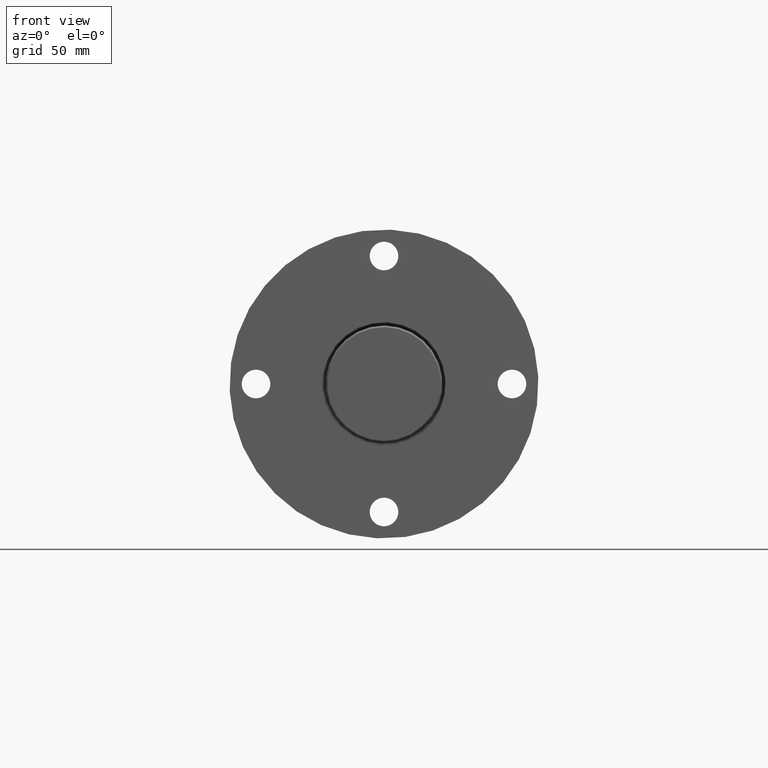
[diagram: clean part render]
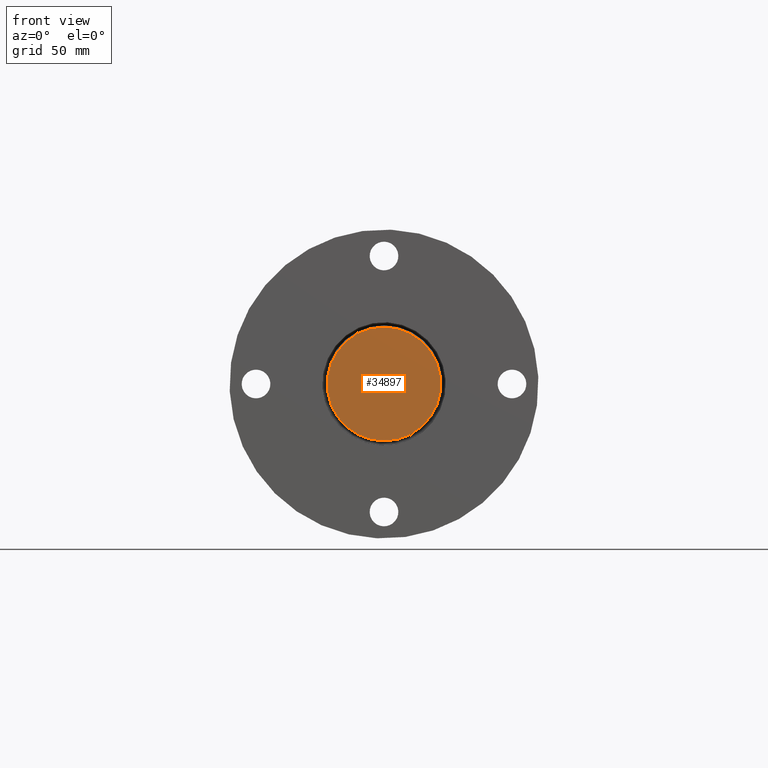
[diagram: same view with one face highlighted and labeled with its STEP entity id]
A machine part, front view. The second image highlights one B-rep face of the part: STEP entity #34897.
In plain terms, the highlighted planar face has unit normal (-0, -1, 0).
Its self-contained STEP definition (entity closure, byte-faithful):
#351 = CARTESIAN_POINT ( 'NONE',  ( 5.135987268370526500E-013, -20.00000000000005000, 3.677505455014397600E-015 ) ) ;
#3193 = DIRECTION ( 'NONE',  ( 3.836715792642514600E-016, 1.000000000000000000, -1.545351233261879400E-016 ) ) ;
#3998 = DIRECTION ( 'NONE',  ( 3.836715792642514600E-016, 1.000000000000000000, -1.545351233261879400E-016 ) ) ;
#5888 = AXIS2_PLACEMENT_3D ( 'NONE', #26883, #18340, #27133 ) ;
#7687 = VERTEX_POINT ( 'NONE', #17036 ) ;
#11354 = CARTESIAN_POINT ( 'NONE',  ( -11.98172690635788000, -20.00000000000004300, 22.81747735475937600 ) ) ;
#13082 = CIRCLE ( 'NONE', #30929, 25.77205953146759000 ) ;
#15273 = EDGE_LOOP ( 'NONE', ( #36502, #31177 ) ) ;
#15365 = CIRCLE ( 'NONE', #29458, 25.77205953146759000 ) ;
#17036 = CARTESIAN_POINT ( 'NONE',  ( 11.98172690635890600, -20.00000000000005700, -22.81747735475936900 ) ) ;
#18046 = CARTESIAN_POINT ( 'NONE',  ( 5.135987268370526500E-013, -20.00000000000005000, 3.677505455014397600E-015 ) ) ;
#18340 = DIRECTION ( 'NONE',  ( -3.836715792642514200E-016, -1.000000000000000000, 1.545351233261879600E-016 ) ) ;
#20098 = EDGE_CURVE ( 'NONE', #7687, #20970, #15365, .T. ) ;
#20970 = VERTEX_POINT ( 'NONE', #11354 ) ;
#23051 = DIRECTION ( 'NONE',  ( 0.4649115019980746300, -2.692409543534875100E-016, -0.8853571569202421900 ) ) ;
#23686 = PLANE ( 'NONE',  #5888 ) ;
#24960 = EDGE_CURVE ( 'NONE', #20970, #7687, #13082, .T. ) ;
#26710 = DIRECTION ( 'NONE',  ( 0.4649115019980746300, -2.692409543534875100E-016, -0.8853571569202421900 ) ) ;
#26883 = CARTESIAN_POINT ( 'NONE',  ( 5.135987268370526500E-013, -20.00000000000004600, 3.677505455014396800E-015 ) ) ;
#27133 = DIRECTION ( 'NONE',  ( -0.4649115019980745200, 3.151921076221091700E-016, 0.8853571569202420800 ) ) ;
#28865 = FACE_OUTER_BOUND ( 'NONE', #15273, .T. ) ;
#29458 = AXIS2_PLACEMENT_3D ( 'NONE', #18046, #3998, #26710 ) ;
#30929 = AXIS2_PLACEMENT_3D ( 'NONE', #351, #3193, #23051 ) ;
#31177 = ORIENTED_EDGE ( 'NONE', *, *, #24960, .F. ) ;
#34897 = ADVANCED_FACE ( 'NONE', ( #28865 ), #23686, .T. ) ;
#36502 = ORIENTED_EDGE ( 'NONE', *, *, #20098, .F. ) ;